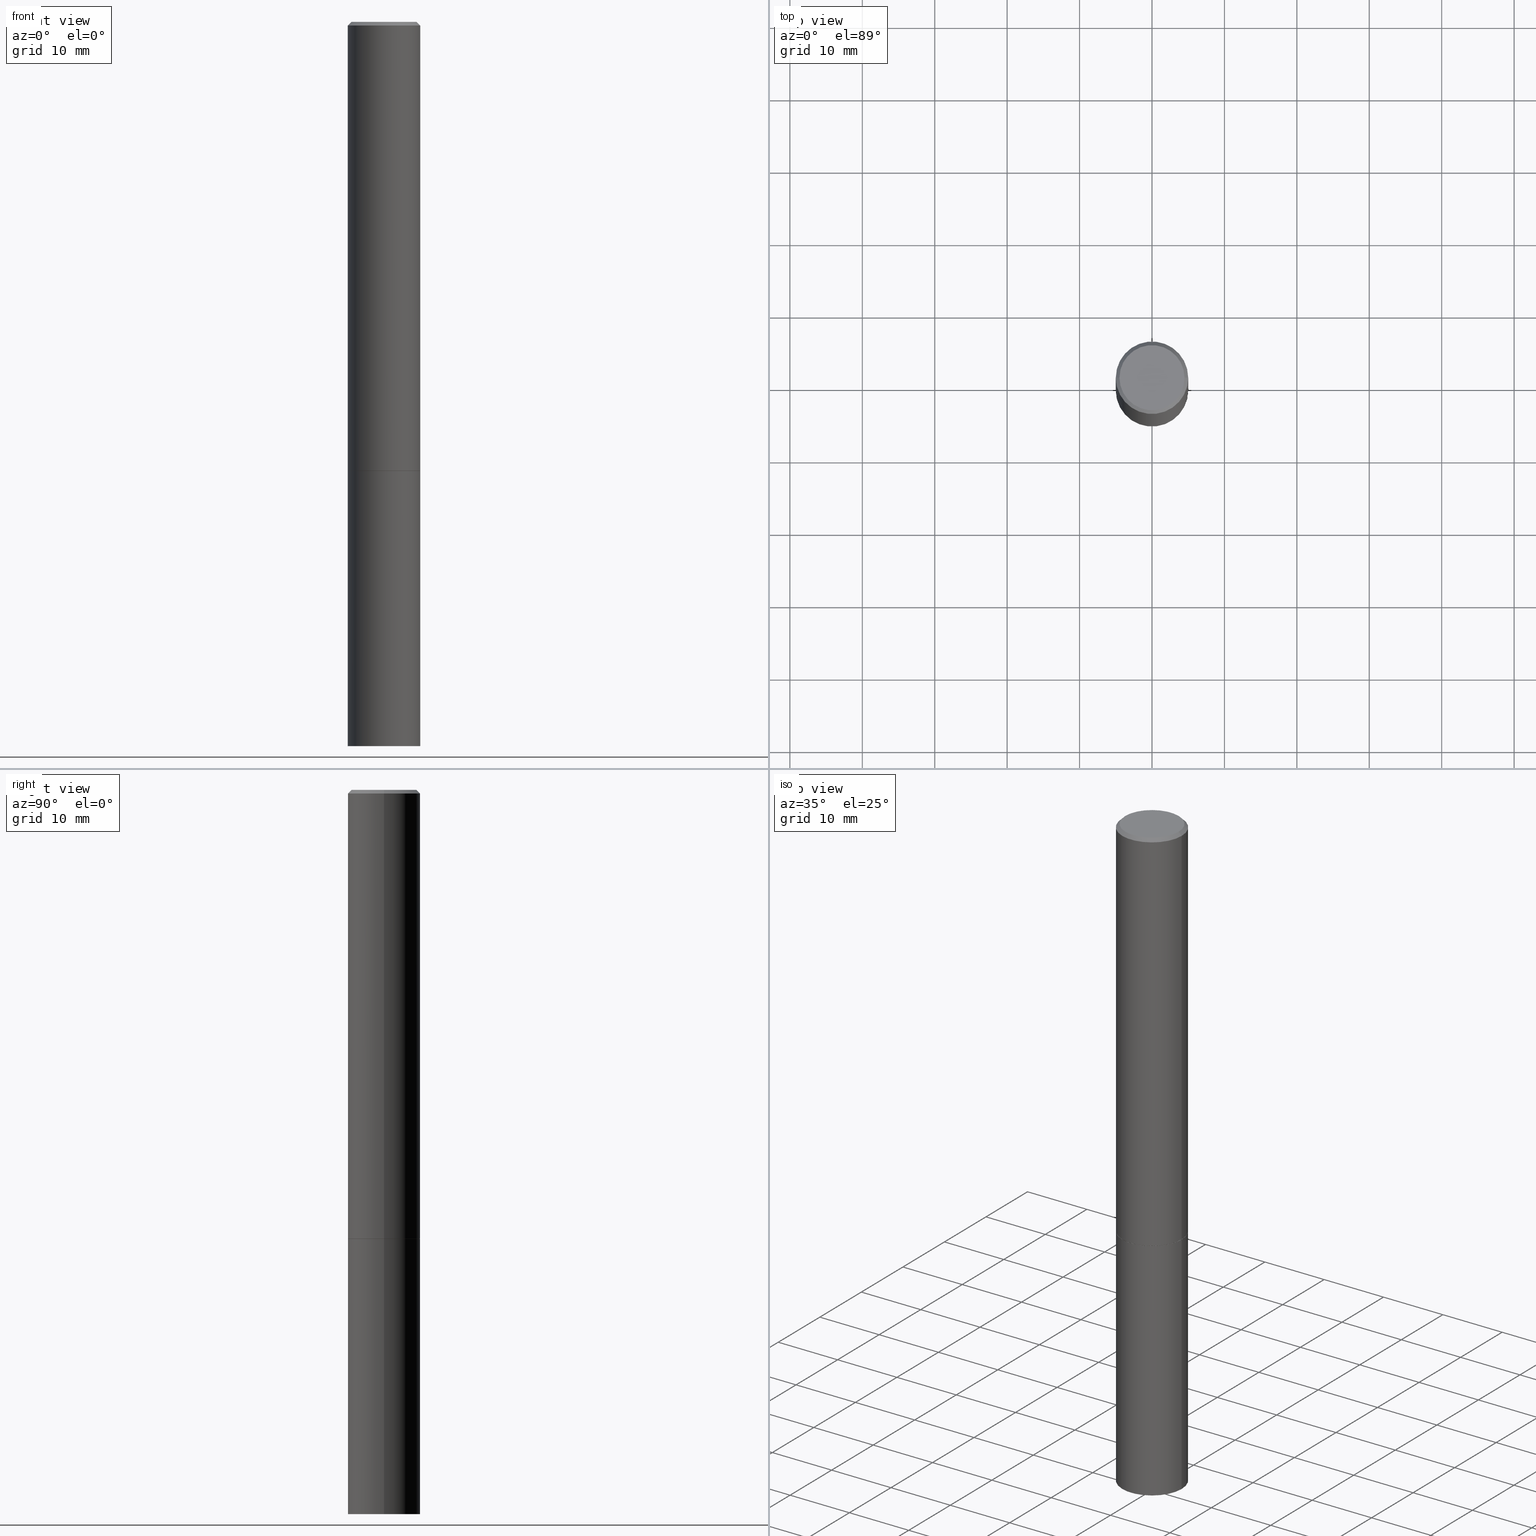
[diagram: canonical four-view strip — front | top / right | iso, engineering-drawing reading convention]
A machine part, canonical four-view strip (front | top / right | iso — engineering-drawing reading convention). The complete STEP part file that produces these views, byte-faithful:
ISO-10303-21;
HEADER;
FILE_DESCRIPTION (( 'STEP AP203' ),
    '1' );
FILE_NAME ('43525.STEP',
    '2024-02-28T04:55:35',
    ( '' ),
    ( '' ),
    'SwSTEP 2.0',
    'SolidWorks 2023',
    '' );
FILE_SCHEMA (( 'CONFIG_CONTROL_DESIGN' ));
ENDSEC;

DATA;
#1 = CARTESIAN_POINT ( 'NONE',  ( 0.000000000000000000, 0.000000000000000000, 0.000000000000000000 ) ) ;
#2 = AXIS2_PLACEMENT_3D ( 'NONE', #253, #111, #21 ) ;
#3 = DIRECTION ( 'NONE',  ( -1.000000000000000000, 6.982962677686265922E-15, -4.876176775795935793E-29 ) ) ;
#4 = CYLINDRICAL_SURFACE ( 'NONE', #314, 0.1968500000000000250 ) ;
#5 = ORIENTED_EDGE ( 'NONE', *, *, #304, .F. ) ;
#6 = UNCERTAINTY_MEASURE_WITH_UNIT (LENGTH_MEASURE( 1.000000000000000082E-05 ), #317, 'distance_accuracy_value', 'NONE');
#7 = CARTESIAN_POINT ( 'NONE',  ( -0.1968499999999996364, 1.304766576325675944E-15, -0.02000000000000002123 ) ) ;
#8 = ORIENTED_EDGE ( 'NONE', *, *, #120, .T. ) ;
#9 = DIRECTION ( 'NONE',  ( 1.000000000000000000, 0.000000000000000000, 0.000000000000000000 ) ) ;
#10 = CC_DESIGN_SECURITY_CLASSIFICATION ( #329, ( #156 ) ) ;
#11 = EDGE_CURVE ( 'NONE', #56, #316, #69, .T. ) ;
#12 = COORDINATED_UNIVERSAL_TIME_OFFSET ( 5, 0, .BEHIND. ) ;
#13 = ORIENTED_EDGE ( 'NONE', *, *, #11, .T. ) ;
#14 = CALENDAR_DATE ( 2024, 27, 2 ) ;
#15 = ADVANCED_FACE ( 'NONE', ( #143 ), #204, .T. ) ;
#16 = APPROVAL_PERSON_ORGANIZATION ( #73, #154, #151 ) ;
#17 = PERSON_AND_ORGANIZATION ( #237, #191 ) ;
#18 = SHAPE_DEFINITION_REPRESENTATION ( #275, #52 ) ;
#19 = EDGE_CURVE ( 'NONE', #119, #34, #57, .T. ) ;
#20 = CIRCLE ( 'NONE', #238, 0.1968500000000000250 ) ;
#21 = DIRECTION ( 'NONE',  ( 1.000000000000000000, -6.982962677686262766E-15, 0.000000000000000000 ) ) ;
#22 = DIRECTION ( 'NONE',  ( -2.445468806185136597E-29, 3.491481338843145583E-15, 1.000000000000000000 ) ) ;
#23 = CARTESIAN_POINT ( 'NONE',  ( 0.000000000000000000, 0.000000000000000000, 0.000000000000000000 ) ) ;
#24 = APPLICATION_CONTEXT ( 'configuration controlled 3d designs of mechanical parts and assemblies' ) ;
#25 = APPROVAL_PERSON_ORGANIZATION ( #127, #236, #35 ) ;
#26 = DIRECTION ( 'NONE',  ( 1.000000000000000000, -6.982962677686262766E-15, 0.000000000000000000 ) ) ;
#27 = CARTESIAN_POINT ( 'NONE',  ( 1.374596203102637849E-15, 0.1968499999999862582, -3.937000000000000721 ) ) ;
#28 = CARTESIAN_POINT ( 'NONE',  ( 0.1968500000000000250, -9.896953003084774574E-15, -2.440900000000000070 ) ) ;
#29 = EDGE_CURVE ( 'NONE', #119, #319, #194, .T. ) ;
#30 = ORIENTED_EDGE ( 'NONE', *, *, #66, .T. ) ;
#31 = AXIS2_PLACEMENT_3D ( 'NONE', #116, #341, #68 ) ;
#32 = LOCAL_TIME ( 23, 55, 35.00000000000000000, #187 ) ;
#33 = APPLICATION_PROTOCOL_DEFINITION ( 'international standard', 'config_control_design', 1994, #107 ) ;
#34 = VERTEX_POINT ( 'NONE', #172 ) ;
#35 = APPROVAL_ROLE ( '' ) ;
#36 = ORIENTED_EDGE ( 'NONE', *, *, #160, .F. ) ;
#37 = DIRECTION ( 'NONE',  ( -1.000000000000000000, 6.982962677686265922E-15, -4.876176775795935793E-29 ) ) ;
#38 = CLOSED_SHELL ( 'NONE', ( #217, #287, #15, #294, #223, #363, #100, #354 ) ) ;
#39 = LOCAL_TIME ( 23, 55, 35.00000000000000000, #90 ) ;
#40 = ORIENTED_EDGE ( 'NONE', *, *, #95, .F. ) ;
#41 = APPROVAL_STATUS ( 'not_yet_approved' ) ;
#42 = CC_DESIGN_PERSON_AND_ORGANIZATION_ASSIGNMENT ( #129, #320, ( #329 ) ) ;
#43 = APPROVAL_DATE_TIME ( #295, #154 ) ;
#44 = PERSON_AND_ORGANIZATION ( #237, #191 ) ;
#45 = APPROVAL_PERSON_ORGANIZATION ( #244, #166, #212 ) ;
#46 = COORDINATED_UNIVERSAL_TIME_OFFSET ( 5, 0, .BEHIND. ) ;
#47 = PLANE ( 'NONE',  #205 ) ;
#48 = CARTESIAN_POINT ( 'NONE',  ( 9.627810689950883669E-29, -1.374596203102546341E-14, -3.937000000000000277 ) ) ;
#49 = ORIENTED_EDGE ( 'NONE', *, *, #11, .F. ) ;
#50 = DIRECTION ( 'NONE',  ( 0.7071067811865469066, -7.319954787623254468E-15, -0.7071067811865481278 ) ) ;
#51 = EDGE_CURVE ( 'NONE', #319, #136, #20, .T. ) ;
#52 = ADVANCED_BREP_SHAPE_REPRESENTATION ( '43525', ( #101, #233, #335 ), #296 ) ;
#53 = CYLINDRICAL_SURFACE ( 'NONE', #325, 0.1968500000000000250 ) ;
#54 = DIRECTION ( 'NONE',  ( 1.000000000000000000, -6.982962677686267499E-15, 0.000000000000000000 ) ) ;
#55 = CARTESIAN_POINT ( 'NONE',  ( 4.890937612370278413E-31, -6.982962677686297772E-17, -0.02000000000000002123 ) ) ;
#56 = VERTEX_POINT ( 'NONE', #339 ) ;
#57 = CIRCLE ( 'NONE', #270, 0.1968500000000000250 ) ;
#58 = CARTESIAN_POINT ( 'NONE',  ( -0.1968500000000000250, 1.398703375343757393E-15, -9.682923725166783677E-30 ) ) ;
#59 = ORIENTED_EDGE ( 'NONE', *, *, #338, .T. ) ;
#60 = CARTESIAN_POINT ( 'NONE',  ( 0.1768499999999996464, -1.316798864272039577E-15, 4.268512490109333727E-18 ) ) ;
#61 = EDGE_CURVE ( 'NONE', #249, #149, #279, .T. ) ;
#62 = PERSON_AND_ORGANIZATION ( #237, #191 ) ;
#63 = DIRECTION ( 'NONE',  ( -2.438088387897960049E-29, 3.491481338843145188E-15, 1.000000000000000000 ) ) ;
#64 = DIRECTION ( 'NONE',  ( -2.445468806185136597E-29, 3.491481338843145583E-15, 1.000000000000000000 ) ) ;
#65 = EDGE_LOOP ( 'NONE', ( #208, #49, #123, #59 ) ) ;
#66 = EDGE_CURVE ( 'NONE', #345, #114, #331, .T. ) ;
#67 = DIRECTION ( 'NONE',  ( 1.000000000000000000, -6.982962677686262766E-15, 0.000000000000000000 ) ) ;
#68 = DIRECTION ( 'NONE',  ( 1.000000000000000000, -6.982962677686262766E-15, 0.000000000000000000 ) ) ;
#69 = CIRCLE ( 'NONE', #274, 0.1768499999999996464 ) ;
#70 = DATE_AND_TIME ( #293, #221 ) ;
#71 = CONICAL_SURFACE ( 'NONE', #246, 0.1958499999999999963, 0.7853981633972946241 ) ;
#72 = PERSON_AND_ORGANIZATION_ROLE ( 'creator' ) ;
#73 = PERSON_AND_ORGANIZATION ( #237, #191 ) ;
#74 = CC_DESIGN_APPROVAL ( #236, ( #104 ) ) ;
#75 = CYLINDRICAL_SURFACE ( 'NONE', #150, 0.1968499999999998307 ) ;
#76 = DIRECTION ( 'NONE',  ( -2.445468806185136597E-29, 3.491481338843145583E-15, 1.000000000000000000 ) ) ;
#77 = AXIS2_PLACEMENT_3D ( 'NONE', #48, #196, #167 ) ;
#78 = CARTESIAN_POINT ( 'NONE',  ( -0.1968499999999998307, 1.398703375343756013E-15, -9.682923725166775270E-30 ) ) ;
#79 = CARTESIAN_POINT ( 'NONE',  ( 0.000000000000000000, 0.000000000000000000, 0.000000000000000000 ) ) ;
#80 = DIRECTION ( 'NONE',  ( -2.445468806185136597E-29, 3.491481338843145583E-15, 1.000000000000000000 ) ) ;
#81 = FACE_OUTER_BOUND ( 'NONE', #348, .T. ) ;
#82 = VECTOR ( 'NONE', #227, 39.37007874015748143 ) ;
#83 = CC_DESIGN_DATE_AND_TIME_ASSIGNMENT ( #184, #214, ( #104 ) ) ;
#84 = DIRECTION ( 'NONE',  ( 1.000000000000000000, -6.982962677686266711E-15, 4.875932113059887537E-29 ) ) ;
#85 = FACE_OUTER_BOUND ( 'NONE', #232, .T. ) ;
#86 = ORIENTED_EDGE ( 'NONE', *, *, #140, .T. ) ;
#87 = ORIENTED_EDGE ( 'NONE', *, *, #61, .T. ) ;
#88 = CONICAL_SURFACE ( 'NONE', #360, 0.1958499999999999963, 0.7853981633972946241 ) ;
#89 = AXIS2_PLACEMENT_3D ( 'NONE', #142, #200, #115 ) ;
#90 = COORDINATED_UNIVERSAL_TIME_OFFSET ( 5, 0, .BEHIND. ) ;
#91 = ORIENTED_EDGE ( 'NONE', *, *, #332, .F. ) ;
#92 = LINE ( 'NONE', #58, #361 ) ;
#93 = VERTEX_POINT ( 'NONE', #283 ) ;
#94 = SECURITY_CLASSIFICATION_LEVEL ( 'unclassified' ) ;
#95 = EDGE_CURVE ( 'NONE', #56, #114, #118, .T. ) ;
#96 = CIRCLE ( 'NONE', #280, 0.1958499999999999963 ) ;
#97 = LOCAL_TIME ( 23, 55, 35.00000000000000000, #12 ) ;
#98 = APPROVAL_DATE_TIME ( #267, #236 ) ;
#99 = CALENDAR_DATE ( 2024, 27, 2 ) ;
#100 = ADVANCED_FACE ( 'NONE', ( #310 ), #210, .F. ) ;
#101 = MANIFOLD_SOLID_BREP ( 'Body-Move/Copy2[1]', #347 ) ;
#102 = CARTESIAN_POINT ( 'NONE',  ( -0.1958499999999999963, -7.125460397647855362E-15, -2.440900000000000070 ) ) ;
#103 = ORIENTED_EDGE ( 'NONE', *, *, #29, .T. ) ;
#104 = PRODUCT_DEFINITION ( 'UNKNOWN', '', #156, #273 ) ;
#105 = CARTESIAN_POINT ( 'NONE',  ( 5.969144809017300159E-29, -8.522356799982234543E-15, -2.440900000000000070 ) ) ;
#106 = CARTESIAN_POINT ( 'NONE',  ( -1.043851414335219820E-46, 1.490343170380447200E-32, 4.268512490100411279E-18 ) ) ;
#107 = APPLICATION_CONTEXT ( 'configuration controlled 3d designs of mechanical parts and assemblies' ) ;
#108 = CARTESIAN_POINT ( 'NONE',  ( 5.966699340211114556E-29, -8.518865318643389958E-15, -2.439899999999999736 ) ) ;
#109 = VECTOR ( 'NONE', #202, 39.37007874015748143 ) ;
#110 = EDGE_LOOP ( 'NONE', ( #91, #177, #103, #359 ) ) ;
#111 = DIRECTION ( 'NONE',  ( -2.445468806185136597E-29, 3.491481338843145583E-15, 1.000000000000000000 ) ) ;
#112 = CARTESIAN_POINT ( 'NONE',  ( 9.627810689950883669E-29, -1.374596203102546341E-14, -3.937000000000000277 ) ) ;
#113 = FACE_OUTER_BOUND ( 'NONE', #284, .T. ) ;
#114 = VERTEX_POINT ( 'NONE', #7 ) ;
#115 = DIRECTION ( 'NONE',  ( 1.000000000000000000, -6.982962677686266711E-15, 0.000000000000000000 ) ) ;
#116 = CARTESIAN_POINT ( 'NONE',  ( 5.969144809017300159E-29, -8.522356799982234543E-15, -2.440900000000000070 ) ) ;
#117 = AXIS2_PLACEMENT_3D ( 'NONE', #321, #63, #176 ) ;
#118 = LINE ( 'NONE', #263, #109 ) ;
#119 = VERTEX_POINT ( 'NONE', #146 ) ;
#120 = EDGE_CURVE ( 'NONE', #93, #201, #96, .T. ) ;
#121 = DIRECTION ( 'NONE',  ( 2.438088387897960049E-29, -3.491481338843145188E-15, -1.000000000000000000 ) ) ;
#122 = CARTESIAN_POINT ( 'NONE',  ( -0.1968500000000000250, -9.735456040160091980E-15, -2.440900000000000070 ) ) ;
#123 = ORIENTED_EDGE ( 'NONE', *, *, #95, .T. ) ;
#124 = ORIENTED_EDGE ( 'NONE', *, *, #19, .F. ) ;
#125 = VECTOR ( 'NONE', #159, 39.37007874015748143 ) ;
#126 = CC_DESIGN_APPROVAL ( #154, ( #156 ) ) ;
#127 = PERSON_AND_ORGANIZATION ( #237, #191 ) ;
#128 = ORIENTED_EDGE ( 'NONE', *, *, #140, .F. ) ;
#129 = PERSON_AND_ORGANIZATION ( #237, #191 ) ;
#130 = ORIENTED_EDGE ( 'NONE', *, *, #19, .T. ) ;
#131 = EDGE_CURVE ( 'NONE', #201, #93, #215, .T. ) ;
#132 = APPROVAL_STATUS ( 'not_yet_approved' ) ;
#133 = AXIS2_PLACEMENT_3D ( 'NONE', #137, #365, #337 ) ;
#134 = DIRECTION ( 'NONE',  ( -1.000000000000000000, 6.982962677686265922E-15, -4.876176775795935793E-29 ) ) ;
#135 = CC_DESIGN_PERSON_AND_ORGANIZATION_ASSIGNMENT ( #44, #72, ( #104 ) ) ;
#136 = VERTEX_POINT ( 'NONE', #122 ) ;
#137 = CARTESIAN_POINT ( 'NONE',  ( 4.890937612370278413E-31, -6.982962677686297772E-17, -0.02000000000000002123 ) ) ;
#138 = VECTOR ( 'NONE', #220, 39.37007874015748143 ) ;
#139 = FACE_OUTER_BOUND ( 'NONE', #110, .T. ) ;
#140 = EDGE_CURVE ( 'NONE', #345, #249, #324, .T. ) ;
#141 = CARTESIAN_POINT ( 'NONE',  ( 0.1968500000000000250, -1.374596203102541608E-15, 9.598753983154300858E-30 ) ) ;
#142 = CARTESIAN_POINT ( 'NONE',  ( 4.890937612370278413E-31, -6.982962677686297772E-17, -0.02000000000000002123 ) ) ;
#143 = FACE_OUTER_BOUND ( 'NONE', #303, .T. ) ;
#144 = FACE_OUTER_BOUND ( 'NONE', #180, .T. ) ;
#145 = CARTESIAN_POINT ( 'NONE',  ( -1.043851414335219820E-46, 1.490343170380447200E-32, 4.268512490100411279E-18 ) ) ;
#146 = CARTESIAN_POINT ( 'NONE',  ( 0.1968500000000000250, -1.512055823412800660E-14, -3.937000000000000277 ) ) ;
#147 =( LENGTH_UNIT ( ) NAMED_UNIT ( * ) SI_UNIT ( $, .METRE. ) );
#148 = DIRECTION ( 'NONE',  ( 1.000000000000000000, -6.982962677686266711E-15, 0.000000000000000000 ) ) ;
#149 = VERTEX_POINT ( 'NONE', #179 ) ;
#150 = AXIS2_PLACEMENT_3D ( 'NONE', #79, #193, #362 ) ;
#151 = APPROVAL_ROLE ( '' ) ;
#152 = EDGE_CURVE ( 'NONE', #93, #249, #265, .T. ) ;
#153 = ORIENTED_EDGE ( 'NONE', *, *, #181, .T. ) ;
#154 = APPROVAL ( #132, 'UNSPECIFIED' ) ;
#155 = CIRCLE ( 'NONE', #186, 0.1968499999999996364 ) ;
#156 = PRODUCT_DEFINITION_FORMATION_WITH_SPECIFIED_SOURCE ( 'ANY', '', #277, .NOT_KNOWN. ) ;
#157 = CALENDAR_DATE ( 2024, 27, 2 ) ;
#158 = AXIS2_PLACEMENT_3D ( 'NONE', #315, #64, #148 ) ;
#159 = DIRECTION ( 'NONE',  ( 0.7071067811864388819, -2.468850131081119129E-15, 0.7071067811866561525 ) ) ;
#160 = EDGE_CURVE ( 'NONE', #34, #119, #251, .T. ) ;
#161 = DIRECTION ( 'NONE',  ( 1.000000000000000000, -6.982962677686266711E-15, 4.875932113059887537E-29 ) ) ;
#162 = CYLINDRICAL_SURFACE ( 'NONE', #188, 0.1968499999999998307 ) ;
#163 = ORIENTED_EDGE ( 'NONE', *, *, #131, .F. ) ;
#164 = FACE_OUTER_BOUND ( 'NONE', #65, .T. ) ;
#165 = DIRECTION ( 'NONE',  ( -2.445468806185136597E-29, 3.491481338843145583E-15, 1.000000000000000000 ) ) ;
#166 = APPROVAL ( #41, 'UNSPECIFIED' ) ;
#167 = DIRECTION ( 'NONE',  ( 1.000000000000000000, -6.982962677686267499E-15, 0.000000000000000000 ) ) ;
#168 = AXIS2_PLACEMENT_3D ( 'NONE', #108, #76, #330 ) ;
#169 = DIRECTION ( 'NONE',  ( -1.000000000000000000, 6.982962677686266711E-15, 0.000000000000000000 ) ) ;
#170 = CC_DESIGN_APPROVAL ( #166, ( #329 ) ) ;
#171 = CARTESIAN_POINT ( 'NONE',  ( 5.969144809017300159E-29, -8.522356799982234543E-15, -2.440900000000000070 ) ) ;
#172 = CARTESIAN_POINT ( 'NONE',  ( -0.1968500000000000250, -9.735456040160091980E-15, -3.937000000000000277 ) ) ;
#173 = DIRECTION ( 'NONE',  ( -2.445468806185136597E-29, 3.491481338843145583E-15, 1.000000000000000000 ) ) ;
#174 = EDGE_CURVE ( 'NONE', #249, #345, #328, .T. ) ;
#175 = EDGE_LOOP ( 'NONE', ( #130, #203, #211, #190 ) ) ;
#176 = DIRECTION ( 'NONE',  ( 1.000000000000000000, -6.982962677686265922E-15, 4.876176775795935793E-29 ) ) ;
#177 = ORIENTED_EDGE ( 'NONE', *, *, #160, .T. ) ;
#178 = DIRECTION ( 'NONE',  ( -2.445468806185136597E-29, 3.491481338843145583E-15, 1.000000000000000000 ) ) ;
#179 = CARTESIAN_POINT ( 'NONE',  ( 0.1968499999999996364, -1.420318657638186558E-15, -0.02000000000000002123 ) ) ;
#180 = EDGE_LOOP ( 'NONE', ( #13, #199 ) ) ;
#181 = EDGE_CURVE ( 'NONE', #136, #319, #245, .T. ) ;
#182 = DIRECTION ( 'NONE',  ( 1.000000000000000000, -6.982962677686262766E-15, 0.000000000000000000 ) ) ;
#183 = ORIENTED_EDGE ( 'NONE', *, *, #66, .F. ) ;
#184 = DATE_AND_TIME ( #157, #281 ) ;
#185 = ADVANCED_FACE ( 'NONE', ( #222 ), #218, .F. ) ;
#186 = AXIS2_PLACEMENT_3D ( 'NONE', #55, #357, #248 ) ;
#187 = COORDINATED_UNIVERSAL_TIME_OFFSET ( 5, 0, .BEHIND. ) ;
#188 = AXIS2_PLACEMENT_3D ( 'NONE', #276, #22, #301 ) ;
#189 = CARTESIAN_POINT ( 'NONE',  ( 0.1968500000000000527, -9.893461521745931567E-15, -2.439899999999999736 ) ) ;
#190 = ORIENTED_EDGE ( 'NONE', *, *, #29, .F. ) ;
#191 = ORGANIZATION ( 'UNSPECIFIED', 'UNSPECIFIED', '' ) ;
#192 = DIRECTION ( 'NONE',  ( 2.438088387897960049E-29, -3.491481338843145188E-15, -1.000000000000000000 ) ) ;
#193 = DIRECTION ( 'NONE',  ( -2.445468806185136597E-29, 3.491481338843145583E-15, 1.000000000000000000 ) ) ;
#194 = LINE ( 'NONE', #141, #82 ) ;
#195 = CC_DESIGN_PERSON_AND_ORGANIZATION_ASSIGNMENT ( #62, #285, ( #277 ) ) ;
#196 = DIRECTION ( 'NONE',  ( -2.445468806185136597E-29, 3.491481338843145583E-15, 1.000000000000000000 ) ) ;
#197 = ORIENTED_EDGE ( 'NONE', *, *, #272, .T. ) ;
#198 = LINE ( 'NONE', #300, #138 ) ;
#199 = ORIENTED_EDGE ( 'NONE', *, *, #304, .T. ) ;
#200 = DIRECTION ( 'NONE',  ( -2.445468806185136597E-29, 3.491481338843145583E-15, 1.000000000000000000 ) ) ;
#201 = VERTEX_POINT ( 'NONE', #102 ) ;
#202 = DIRECTION ( 'NONE',  ( -0.7071067811865469066, 2.468850131082250355E-15, -0.7071067811865481278 ) ) ;
#203 = ORIENTED_EDGE ( 'NONE', *, *, #332, .T. ) ;
#204 = CONICAL_SURFACE ( 'NONE', #291, 0.1968499999999996364, 0.7853981633974473908 ) ;
#205 = AXIS2_PLACEMENT_3D ( 'NONE', #27, #282, #37 ) ;
#206 = DIRECTION ( 'NONE',  ( -2.445468806185136597E-29, 3.491481338843145583E-15, 1.000000000000000000 ) ) ;
#207 = DIRECTION ( 'NONE',  ( -2.445468806185136877E-29, 3.491481338843145188E-15, 1.000000000000000000 ) ) ;
#208 = ORIENTED_EDGE ( 'NONE', *, *, #272, .F. ) ;
#209 = EDGE_CURVE ( 'NONE', #149, #114, #155, .T. ) ;
#210 = PLANE ( 'NONE',  #117 ) ;
#211 = ORIENTED_EDGE ( 'NONE', *, *, #51, .F. ) ;
#212 = APPROVAL_ROLE ( '' ) ;
#213 = PERSON_AND_ORGANIZATION_ROLE ( 'design_supplier' ) ;
#214 = DATE_TIME_ROLE ( 'creation_date' ) ;
#215 = CIRCLE ( 'NONE', #31, 0.1958499999999999963 ) ;
#216 = CIRCLE ( 'NONE', #340, 0.1768499999999996464 ) ;
#217 = ADVANCED_FACE ( 'NONE', ( #81 ), #88, .T. ) ;
#218 = PLANE ( 'NONE',  #299 ) ;
#219 = DIRECTION ( 'NONE',  ( -2.445468806185136877E-29, 3.491481338843145188E-15, 1.000000000000000000 ) ) ;
#220 = DIRECTION ( 'NONE',  ( -0.7071067811864388819, 7.493145998869961307E-15, 0.7071067811866561525 ) ) ;
#221 = LOCAL_TIME ( 23, 55, 35.00000000000000000, #353 ) ;
#222 = FACE_OUTER_BOUND ( 'NONE', #322, .T. ) ;
#223 = ADVANCED_FACE ( 'NONE', ( #336 ), #75, .T. ) ;
#224 = ORIENTED_EDGE ( 'NONE', *, *, #209, .F. ) ;
#225 = CARTESIAN_POINT ( 'NONE',  ( 0.1968499999999996364, -1.420318657638186558E-15, -0.02000000000000002123 ) ) ;
#226 = DIRECTION ( 'NONE',  ( -2.445468806185136597E-29, 3.491481338843145583E-15, 1.000000000000000000 ) ) ;
#227 = DIRECTION ( 'NONE',  ( -2.445468806185136877E-29, 3.491481338843145188E-15, 1.000000000000000000 ) ) ;
#228 = VECTOR ( 'NONE', #219, 39.37007874015748143 ) ;
#229 = CIRCLE ( 'NONE', #89, 0.1968499999999996364 ) ;
#230 = ADVANCED_FACE ( 'NONE', ( #139 ), #53, .T. ) ;
#231 =( NAMED_UNIT ( * ) PLANE_ANGLE_UNIT ( ) SI_UNIT ( $, .RADIAN. ) );
#232 = EDGE_LOOP ( 'NONE', ( #352, #241, #364, #128 ) ) ;
#233 = MANIFOLD_SOLID_BREP ( 'Body-Move/Copy2[2]', #38 ) ;
#234 = MECHANICAL_CONTEXT ( 'NONE', #24, 'mechanical' ) ;
#235 = DIRECTION ( 'NONE',  ( 0.000000000000000000, 0.000000000000000000, 1.000000000000000000 ) ) ;
#236 = APPROVAL ( #312, 'UNSPECIFIED' ) ;
#237 = PERSON ( 'UNSPECIFIED', 'UNSPECIFIED', 'UNSPECIFIED', ('UNSPECIFIED'), ('UNSPECIFIED'), ('UNSPECIFIED') ) ;
#238 = AXIS2_PLACEMENT_3D ( 'NONE', #255, #165, #366 ) ;
#239 = EDGE_LOOP ( 'NONE', ( #183, #86, #87, #268 ) ) ;
#240 = CALENDAR_DATE ( 2024, 27, 2 ) ;
#241 = ORIENTED_EDGE ( 'NONE', *, *, #131, .T. ) ;
#242 = DATE_AND_TIME ( #14, #32 ) ;
#243 = ORIENTED_EDGE ( 'NONE', *, *, #209, .T. ) ;
#244 = PERSON_AND_ORGANIZATION ( #237, #191 ) ;
#245 = CIRCLE ( 'NONE', #2, 0.1968500000000000250 ) ;
#246 = AXIS2_PLACEMENT_3D ( 'NONE', #171, #206, #67 ) ;
#247 = CARTESIAN_POINT ( 'NONE',  ( 1.374596203102601167E-15, 0.1968499999999914762, -2.440900000000000514 ) ) ;
#248 = DIRECTION ( 'NONE',  ( 1.000000000000000000, -6.982962677686266711E-15, 0.000000000000000000 ) ) ;
#249 = VERTEX_POINT ( 'NONE', #189 ) ;
#250 = CARTESIAN_POINT ( 'NONE',  ( 4.890937612370278413E-31, -6.982962677686297772E-17, -0.02000000000000002123 ) ) ;
#251 = CIRCLE ( 'NONE', #77, 0.1968500000000000250 ) ;
#252 = VECTOR ( 'NONE', #50, 39.37007874015748143 ) ;
#253 = CARTESIAN_POINT ( 'NONE',  ( 5.969144809017299038E-29, -8.522356799982232966E-15, -2.440900000000000070 ) ) ;
#254 = LINE ( 'NONE', #225, #252 ) ;
#255 = CARTESIAN_POINT ( 'NONE',  ( 5.969144809017299038E-29, -8.522356799982232966E-15, -2.440900000000000070 ) ) ;
#256 = CC_DESIGN_PERSON_AND_ORGANIZATION_ASSIGNMENT ( #269, #327, ( #156 ) ) ;
#257 = PLANE ( 'NONE',  #258 ) ;
#258 = AXIS2_PLACEMENT_3D ( 'NONE', #288, #121, #3 ) ;
#259 = DIRECTION ( 'NONE',  ( 1.000000000000000000, -6.982962677686265922E-15, 4.876176775795935793E-29 ) ) ;
#260 = ORIENTED_EDGE ( 'NONE', *, *, #61, .F. ) ;
#261 = EDGE_CURVE ( 'NONE', #201, #345, #198, .T. ) ;
#262 = DIRECTION ( 'NONE',  ( -2.445468806185136877E-29, 3.491481338843145188E-15, 1.000000000000000000 ) ) ;
#263 = CARTESIAN_POINT ( 'NONE',  ( -0.1968499999999996364, 1.304766576325675944E-15, -0.02000000000000002123 ) ) ;
#264 = LENGTH_MEASURE_WITH_UNIT ( LENGTH_MEASURE( 0.02539999999999999897 ), #147 );
#265 = LINE ( 'NONE', #351, #125 ) ;
#266 = ORIENTED_EDGE ( 'NONE', *, *, #152, .F. ) ;
#267 = DATE_AND_TIME ( #240, #39 ) ;
#268 = ORIENTED_EDGE ( 'NONE', *, *, #338, .F. ) ;
#269 = PERSON_AND_ORGANIZATION ( #237, #191 ) ;
#270 = AXIS2_PLACEMENT_3D ( 'NONE', #112, #226, #54 ) ;
#271 = DATE_TIME_ROLE ( 'classification_date' ) ;
#272 = EDGE_CURVE ( 'NONE', #316, #149, #254, .T. ) ;
#273 = DESIGN_CONTEXT ( 'detailed design', #107, 'design' ) ;
#274 = AXIS2_PLACEMENT_3D ( 'NONE', #106, #80, #161 ) ;
#275 = PRODUCT_DEFINITION_SHAPE ( 'NONE', 'NONE',  #104 ) ;
#276 = CARTESIAN_POINT ( 'NONE',  ( 0.000000000000000000, 0.000000000000000000, 0.000000000000000000 ) ) ;
#277 = PRODUCT ( '43525', '43525', '', ( #234 ) ) ;
#278 = DIRECTION ( 'NONE',  ( -2.445468806185136597E-29, 3.491481338843145583E-15, 1.000000000000000000 ) ) ;
#279 = LINE ( 'NONE', #356, #228 ) ;
#280 = AXIS2_PLACEMENT_3D ( 'NONE', #344, #318, #182 ) ;
#281 = LOCAL_TIME ( 23, 55, 35.00000000000000000, #46 ) ;
#282 = DIRECTION ( 'NONE',  ( 2.438088387897960049E-29, -3.491481338843145188E-15, -1.000000000000000000 ) ) ;
#283 = CARTESIAN_POINT ( 'NONE',  ( 0.1958499999999999963, -9.889970040407088560E-15, -2.440900000000000070 ) ) ;
#284 = EDGE_LOOP ( 'NONE', ( #124, #36 ) ) ;
#285 = PERSON_AND_ORGANIZATION_ROLE ( 'design_owner' ) ;
#286 = EDGE_LOOP ( 'NONE', ( #292, #30, #224, #260 ) ) ;
#287 = ADVANCED_FACE ( 'NONE', ( #333 ), #162, .T. ) ;
#288 = CARTESIAN_POINT ( 'NONE',  ( 1.234936949548813631E-15, 0.1768499999999996464, -6.153342185293588703E-16 ) ) ;
#289 = EDGE_LOOP ( 'NONE', ( #290, #163 ) ) ;
#290 = ORIENTED_EDGE ( 'NONE', *, *, #120, .F. ) ;
#291 = AXIS2_PLACEMENT_3D ( 'NONE', #250, #334, #169 ) ;
#292 = ORIENTED_EDGE ( 'NONE', *, *, #174, .T. ) ;
#293 = CALENDAR_DATE ( 2024, 27, 2 ) ;
#294 = ADVANCED_FACE ( 'NONE', ( #164 ), #355, .T. ) ;
#295 = DATE_AND_TIME ( #99, #97 ) ;
#296 =( GEOMETRIC_REPRESENTATION_CONTEXT ( 3 ) GLOBAL_UNCERTAINTY_ASSIGNED_CONTEXT ( ( #6 ) ) GLOBAL_UNIT_ASSIGNED_CONTEXT ( ( #317, #231, #342 ) ) REPRESENTATION_CONTEXT ( 'NONE', 'WORKASPACE' ) );
#297 = ADVANCED_FACE ( 'NONE', ( #113 ), #47, .T. ) ;
#298 = APPROVAL_DATE_TIME ( #70, #166 ) ;
#299 = AXIS2_PLACEMENT_3D ( 'NONE', #247, #192, #134 ) ;
#300 = CARTESIAN_POINT ( 'NONE',  ( -0.1958499999999999963, -7.130758851996077764E-15, -2.440900000000000070 ) ) ;
#301 = DIRECTION ( 'NONE',  ( 1.000000000000000000, -6.982962677686266711E-15, 4.876176775795935793E-29 ) ) ;
#302 = DIRECTION ( 'NONE',  ( -2.445468806185136597E-29, 3.491481338843145583E-15, 1.000000000000000000 ) ) ;
#303 = EDGE_LOOP ( 'NONE', ( #5, #197, #243, #40 ) ) ;
#304 = EDGE_CURVE ( 'NONE', #316, #56, #216, .T. ) ;
#305 = ORIENTED_EDGE ( 'NONE', *, *, #261, .T. ) ;
#306 = DIMENSIONAL_EXPONENTS ( 1.000000000000000000, 0.000000000000000000, 0.000000000000000000, 0.000000000000000000, 0.000000000000000000, 0.000000000000000000, 0.000000000000000000 ) ;
#307 = CARTESIAN_POINT ( 'NONE',  ( 0.000000000000000000, 0.000000000000000000, 0.000000000000000000 ) ) ;
#308 = APPLICATION_PROTOCOL_DEFINITION ( 'international standard', 'config_control_design', 1994, #24 ) ;
#309 = CC_DESIGN_PERSON_AND_ORGANIZATION_ASSIGNMENT ( #17, #213, ( #156 ) ) ;
#310 = FACE_OUTER_BOUND ( 'NONE', #289, .T. ) ;
#311 = ORIENTED_EDGE ( 'NONE', *, *, #51, .T. ) ;
#312 = APPROVAL_STATUS ( 'not_yet_approved' ) ;
#313 = VECTOR ( 'NONE', #207, 39.37007874015748143 ) ;
#314 = AXIS2_PLACEMENT_3D ( 'NONE', #307, #178, #259 ) ;
#315 = CARTESIAN_POINT ( 'NONE',  ( 5.966699340211114556E-29, -8.518865318643389958E-15, -2.439899999999999736 ) ) ;
#316 = VERTEX_POINT ( 'NONE', #60 ) ;
#317 =( CONVERSION_BASED_UNIT ( 'INCH', #264 ) LENGTH_UNIT ( ) NAMED_UNIT ( #306 ) );
#318 = DIRECTION ( 'NONE',  ( -2.445468806185136597E-29, 3.491481338843145583E-15, 1.000000000000000000 ) ) ;
#319 = VERTEX_POINT ( 'NONE', #28 ) ;
#320 = PERSON_AND_ORGANIZATION_ROLE ( 'classification_officer' ) ;
#321 = CARTESIAN_POINT ( 'NONE',  ( 5.969144809017300159E-29, -8.522356799982234543E-15, -2.440900000000000070 ) ) ;
#322 = EDGE_LOOP ( 'NONE', ( #311, #153 ) ) ;
#323 = CC_DESIGN_DATE_AND_TIME_ASSIGNMENT ( #242, #271, ( #329 ) ) ;
#324 = CIRCLE ( 'NONE', #158, 0.1968500000000000527 ) ;
#325 = AXIS2_PLACEMENT_3D ( 'NONE', #23, #278, #358 ) ;
#326 = PRODUCT_RELATED_PRODUCT_CATEGORY ( 'detail', '', ( #277 ) ) ;
#327 = PERSON_AND_ORGANIZATION_ROLE ( 'creator' ) ;
#328 = CIRCLE ( 'NONE', #168, 0.1968500000000000527 ) ;
#329 = SECURITY_CLASSIFICATION ( '', '', #94 ) ;
#330 = DIRECTION ( 'NONE',  ( 1.000000000000000000, -6.982962677686266711E-15, 0.000000000000000000 ) ) ;
#331 = LINE ( 'NONE', #78, #313 ) ;
#332 = EDGE_CURVE ( 'NONE', #34, #136, #92, .T. ) ;
#333 = FACE_OUTER_BOUND ( 'NONE', #286, .T. ) ;
#334 = DIRECTION ( 'NONE',  ( 2.445468806185136597E-29, -3.491481338843145583E-15, -1.000000000000000000 ) ) ;
#335 = AXIS2_PLACEMENT_3D ( 'NONE', #1, #235, #9 ) ;
#336 = FACE_OUTER_BOUND ( 'NONE', #239, .T. ) ;
#337 = DIRECTION ( 'NONE',  ( -1.000000000000000000, 6.982962677686266711E-15, 0.000000000000000000 ) ) ;
#338 = EDGE_CURVE ( 'NONE', #114, #149, #229, .T. ) ;
#339 = CARTESIAN_POINT ( 'NONE',  ( -0.1768499999999996464, 1.269851762937245083E-15, 4.268512490091652920E-18 ) ) ;
#340 = AXIS2_PLACEMENT_3D ( 'NONE', #145, #173, #84 ) ;
#341 = DIRECTION ( 'NONE',  ( -2.445468806185136597E-29, 3.491481338843145583E-15, 1.000000000000000000 ) ) ;
#342 =( NAMED_UNIT ( * ) SI_UNIT ( $, .STERADIAN. ) SOLID_ANGLE_UNIT ( ) );
#343 = CARTESIAN_POINT ( 'NONE',  ( -0.1968500000000000527, -2.895644097366364896E-15, -2.439899999999999736 ) ) ;
#344 = CARTESIAN_POINT ( 'NONE',  ( 5.969144809017300159E-29, -8.522356799982234543E-15, -2.440900000000000070 ) ) ;
#345 = VERTEX_POINT ( 'NONE', #343 ) ;
#346 = FACE_OUTER_BOUND ( 'NONE', #175, .T. ) ;
#347 = CLOSED_SHELL ( 'NONE', ( #350, #297, #185, #230 ) ) ;
#348 = EDGE_LOOP ( 'NONE', ( #8, #305, #349, #266 ) ) ;
#349 = ORIENTED_EDGE ( 'NONE', *, *, #174, .F. ) ;
#350 = ADVANCED_FACE ( 'NONE', ( #346 ), #4, .T. ) ;
#351 = CARTESIAN_POINT ( 'NONE',  ( 0.1958499999999999963, -9.889970040407088560E-15, -2.440900000000000070 ) ) ;
#352 = ORIENTED_EDGE ( 'NONE', *, *, #261, .F. ) ;
#353 = COORDINATED_UNIVERSAL_TIME_OFFSET ( 5, 0, .BEHIND. ) ;
#354 = ADVANCED_FACE ( 'NONE', ( #144 ), #257, .F. ) ;
#355 = CONICAL_SURFACE ( 'NONE', #133, 0.1968499999999996364, 0.7853981633974473908 ) ;
#356 = CARTESIAN_POINT ( 'NONE',  ( 0.1968499999999998307, -1.374596203102540425E-15, 9.598753983154291049E-30 ) ) ;
#357 = DIRECTION ( 'NONE',  ( -2.445468806185136597E-29, 3.491481338843145583E-15, 1.000000000000000000 ) ) ;
#358 = DIRECTION ( 'NONE',  ( 1.000000000000000000, -6.982962677686265922E-15, 4.876176775795935793E-29 ) ) ;
#359 = ORIENTED_EDGE ( 'NONE', *, *, #181, .F. ) ;
#360 = AXIS2_PLACEMENT_3D ( 'NONE', #105, #302, #26 ) ;
#361 = VECTOR ( 'NONE', #262, 39.37007874015748143 ) ;
#362 = DIRECTION ( 'NONE',  ( 1.000000000000000000, -6.982962677686266711E-15, 4.876176775795935793E-29 ) ) ;
#363 = ADVANCED_FACE ( 'NONE', ( #85 ), #71, .T. ) ;
#364 = ORIENTED_EDGE ( 'NONE', *, *, #152, .T. ) ;
#365 = DIRECTION ( 'NONE',  ( 2.445468806185136597E-29, -3.491481338843145583E-15, -1.000000000000000000 ) ) ;
#366 = DIRECTION ( 'NONE',  ( 1.000000000000000000, -6.982962677686262766E-15, 0.000000000000000000 ) ) ;
ENDSEC;
END-ISO-10303-21;
